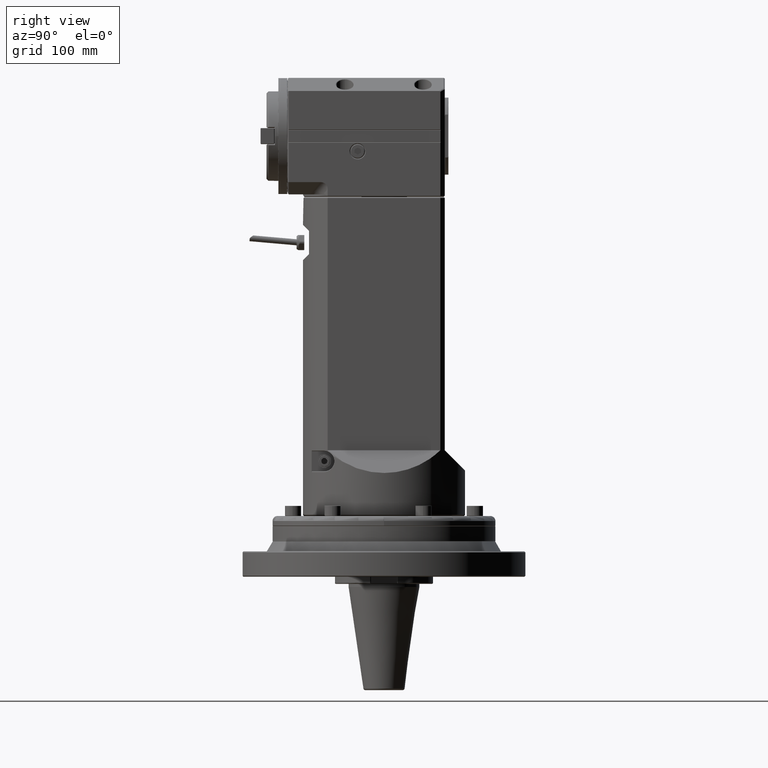
[diagram: clean part render]
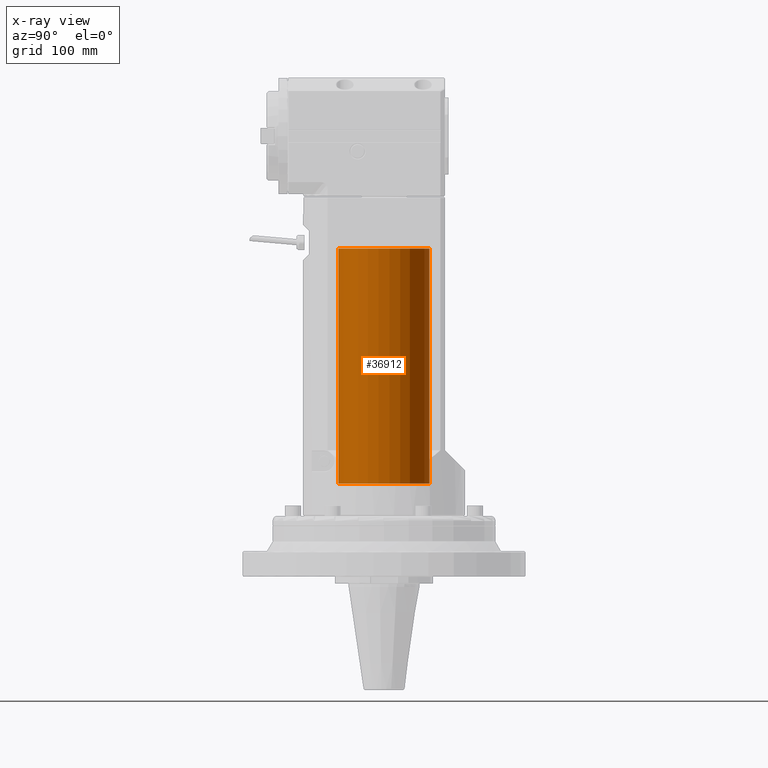
[diagram: x-ray — body ghosted, one internal face saturated and labeled with its STEP entity id]
A machine part, right view, then the same camera in x-ray: the body is ghosted and one INTERNAL B-rep face — a face not visible from any outside direction — is saturated and labeled: STEP entity #36912.
In plain terms, the highlighted cylindrical surface (bore or boss wall) has radius 45 mm, axis along (-0, 0, 1).
Its self-contained STEP definition (entity closure, byte-faithful):
#5046=FACE_OUTER_BOUND('',#7304,.T.);
#7304=EDGE_LOOP('',(#27768,#27769,#27770,#27771,#27772,#27773));
#9982=LINE('',#58513,#12528);
#12528=VECTOR('',#45102,1.77165354330709);
#14549=CIRCLE('',#39521,1.77165354330709);
#14550=CIRCLE('',#39522,1.77165354330709);
#14551=CIRCLE('',#39524,1.77165354330709);
#14552=CIRCLE('',#39525,1.77165354330709);
#17144=VERTEX_POINT('',#58504);
#17145=VERTEX_POINT('',#58505);
#17146=VERTEX_POINT('',#58510);
#17147=VERTEX_POINT('',#58511);
#21055=EDGE_CURVE('',#17144,#17145,#14549,.T.);
#21056=EDGE_CURVE('',#17145,#17144,#14550,.T.);
#21058=EDGE_CURVE('',#17146,#17147,#14551,.T.);
#21059=EDGE_CURVE('',#17147,#17145,#9982,.T.);
#21060=EDGE_CURVE('',#17147,#17146,#14552,.T.);
#27768=ORIENTED_EDGE('',*,*,#21058,.T.);
#27769=ORIENTED_EDGE('',*,*,#21059,.T.);
#27770=ORIENTED_EDGE('',*,*,#21055,.F.);
#27771=ORIENTED_EDGE('',*,*,#21056,.F.);
#27772=ORIENTED_EDGE('',*,*,#21059,.F.);
#27773=ORIENTED_EDGE('',*,*,#21060,.T.);
#35963=CYLINDRICAL_SURFACE('',#39523,1.77165354330709);
#36912=ADVANCED_FACE('',(#5046),#35963,.F.);
#39521=AXIS2_PLACEMENT_3D('',#58506,#45093,#45094);
#39522=AXIS2_PLACEMENT_3D('',#58507,#45095,#45096);
#39523=AXIS2_PLACEMENT_3D('',#58509,#45098,#45099);
#39524=AXIS2_PLACEMENT_3D('',#58512,#45100,#45101);
#39525=AXIS2_PLACEMENT_3D('',#58514,#45103,#45104);
#45093=DIRECTION('center_axis',(0.,1.,0.));
#45094=DIRECTION('ref_axis',(0.,0.,-1.));
#45095=DIRECTION('center_axis',(0.,1.,0.));
#45096=DIRECTION('ref_axis',(0.,0.,-1.));
#45098=DIRECTION('center_axis',(0.,-1.,0.));
#45099=DIRECTION('ref_axis',(0.,0.,1.));
#45100=DIRECTION('center_axis',(0.,1.,0.));
#45101=DIRECTION('ref_axis',(0.,0.,1.));
#45102=DIRECTION('',(0.,-1.,0.));
#45103=DIRECTION('center_axis',(0.,1.,0.));
#45104=DIRECTION('ref_axis',(0.,0.,1.));
#58504=CARTESIAN_POINT('',(-4.33929968201969E-16,-10.3897637795276,1.77165354330709));
#58505=CARTESIAN_POINT('',(2.16964984100909E-16,-10.3897637795276,-1.77165354330709));
#58506=CARTESIAN_POINT('Origin',(0.,-10.3897637795276,1.90856864347441E-15));
#58507=CARTESIAN_POINT('Origin',(0.,-10.3897637795276,1.90856864347441E-15));
#58509=CARTESIAN_POINT('Origin',(0.,0.619881889763779,0.));
#58510=CARTESIAN_POINT('',(-4.33929968201969E-16,-1.25787401574803,1.77165354330709));
#58511=CARTESIAN_POINT('',(2.16964984100909E-16,-1.25787401574803,-1.77165354330709));
#58512=CARTESIAN_POINT('Origin',(0.,-1.25787401574803,0.));
#58513=CARTESIAN_POINT('',(2.16964984100909E-16,0.619881889763779,-1.77165354330709));
#58514=CARTESIAN_POINT('Origin',(0.,-1.25787401574803,0.));